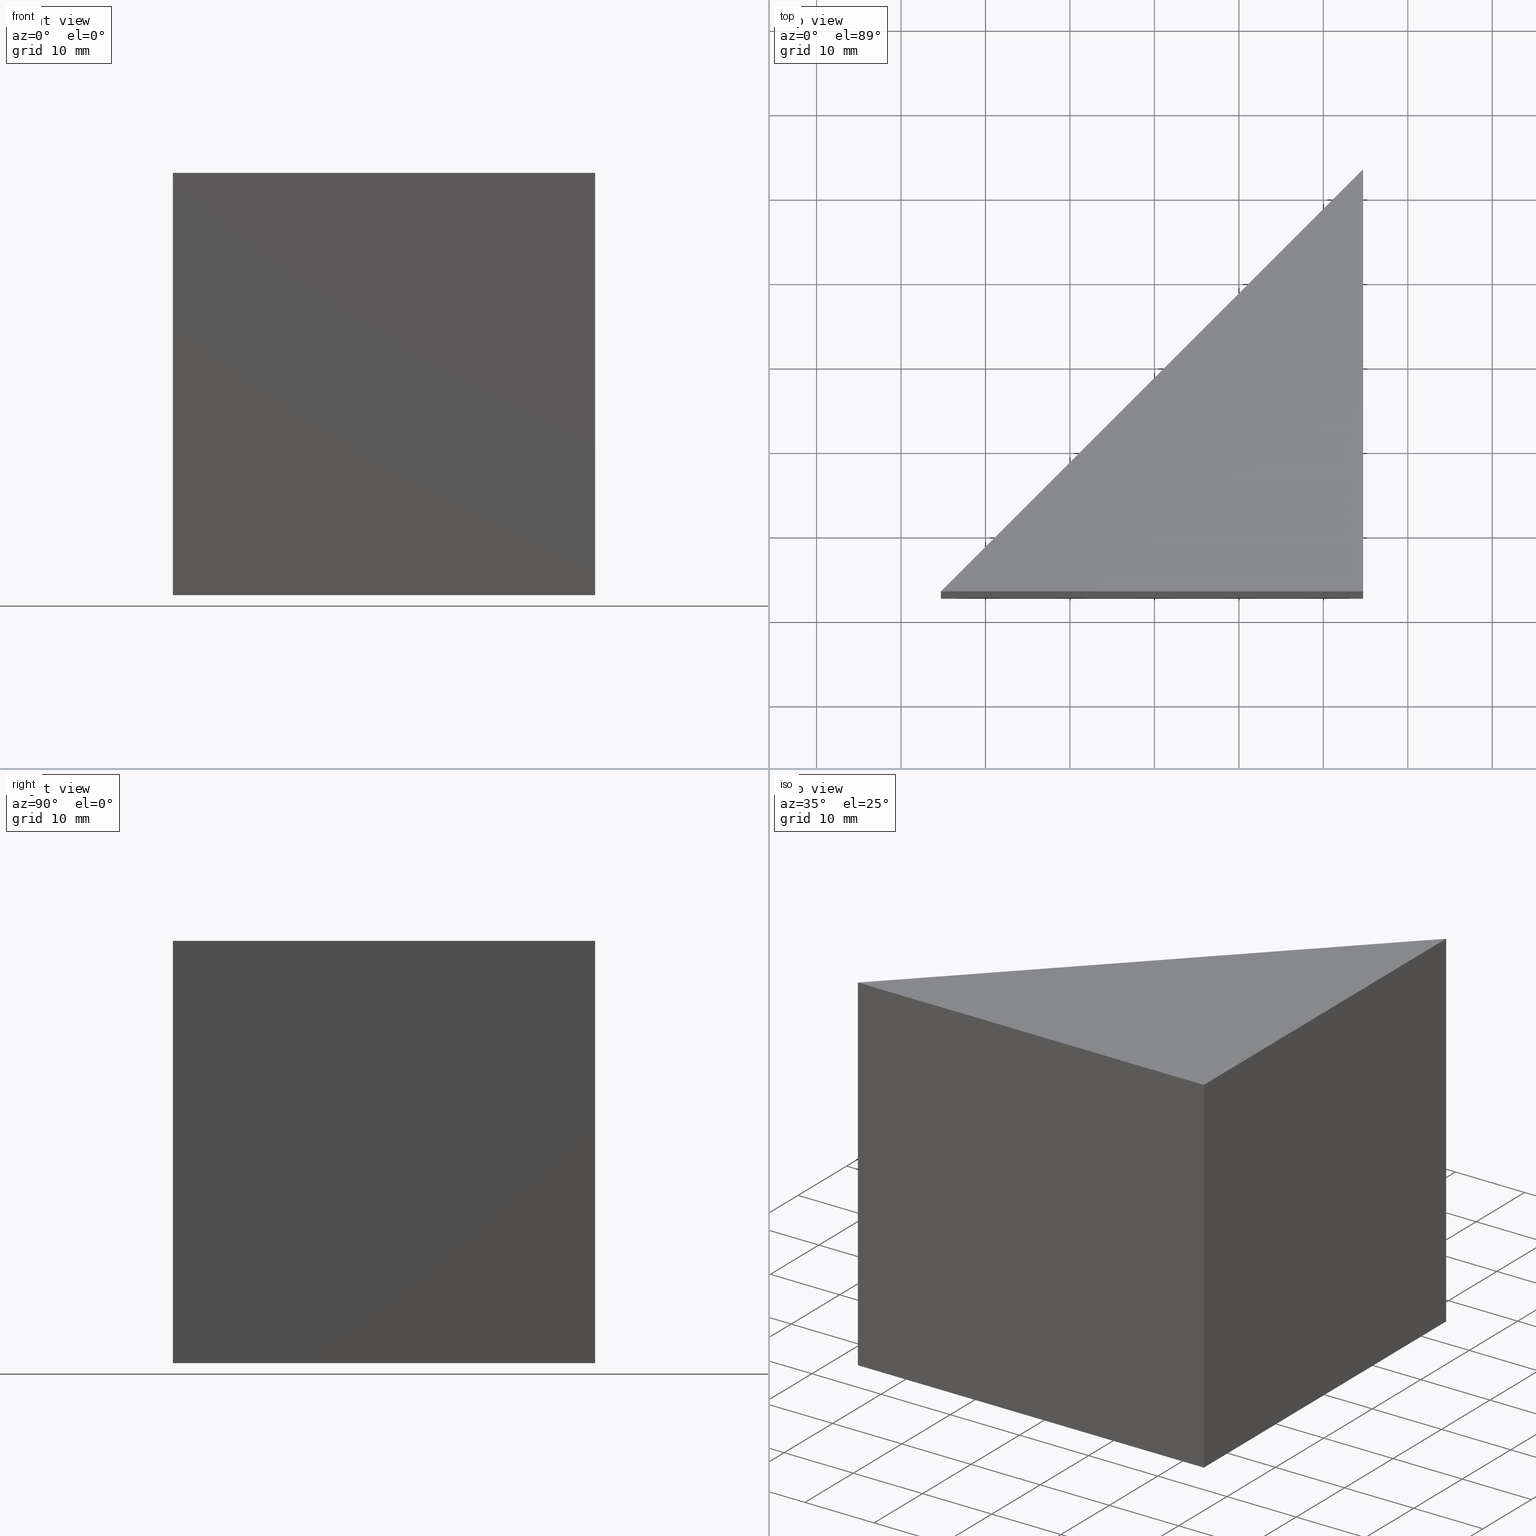
[diagram: canonical four-view strip — front | top / right | iso, engineering-drawing reading convention]
A machine part, canonical four-view strip (front | top / right | iso — engineering-drawing reading convention). The complete STEP part file that produces these views, byte-faithful:
ISO-10303-21;
HEADER;
FILE_DESCRIPTION (( 'STEP AP203' ),
    '1' );
FILE_NAME ('355511.STEP',
    '2019-07-22T06:13:19',
    ( '' ),
    ( '' ),
    'SwSTEP 2.0',
    'SolidWorks 2016',
    '' );
FILE_SCHEMA (( 'CONFIG_CONTROL_DESIGN' ));
ENDSEC;

DATA;
#1 = CALENDAR_DATE ( 2019, 22, 7 ) ;
#2 = APPROVAL ( #37, 'δָ��' ) ;
#3 = AXIS2_PLACEMENT_3D ( 'NONE', #7, #31, #127 ) ;
#4 = VERTEX_POINT ( 'NONE', #194 ) ;
#5 = PRODUCT_DEFINITION_FORMATION_WITH_SPECIFIED_SOURCE ( '�κ�', '', #128, .NOT_KNOWN. ) ;
#6 = PERSON_AND_ORGANIZATION ( #80, #125 ) ;
#7 = CARTESIAN_POINT ( 'NONE',  ( 0.0000000000000000000, 0.0000000000000000000, 0.0000000000000000000 ) ) ;
#8 = DIRECTION ( 'NONE',  ( 0.0000000000000000000, -1.000000000000000000, 0.0000000000000000000 ) ) ;
#9 = PLANE ( 'NONE',  #264 ) ;
#10 = PERSON_AND_ORGANIZATION ( #80, #125 ) ;
#11 = VERTEX_POINT ( 'NONE', #81 ) ;
#12 = CC_DESIGN_DATE_AND_TIME_ASSIGNMENT ( #63, #187, ( #29 ) ) ;
#13 = DIRECTION ( 'NONE',  ( -1.000000000000000000, 0.0000000000000000000, 0.0000000000000000000 ) ) ;
#14 = CC_DESIGN_PERSON_AND_ORGANIZATION_ASSIGNMENT ( #54, #64, ( #128 ) ) ;
#15 =( LENGTH_UNIT ( ) NAMED_UNIT ( * ) SI_UNIT ( .MILLI., .METRE. ) );
#16 = ORIENTED_EDGE ( 'NONE', *, *, #278, .F. ) ;
#17 = DATE_TIME_ROLE ( 'classification_date' ) ;
#18 = MANIFOLD_SOLID_BREP ( '͹̨-����1', #231 ) ;
#19 = PERSON_AND_ORGANIZATION_ROLE ( 'design_owner' ) ;
#20 = CARTESIAN_POINT ( 'NONE',  ( 0.0000000000000000000, 0.0000000000000000000, 0.0000000000000000000 ) ) ;
#21 = COORDINATED_UNIVERSAL_TIME_OFFSET ( 8, 0, .AHEAD. ) ;
#22 = VERTEX_POINT ( 'NONE', #79 ) ;
#23 =( GEOMETRIC_REPRESENTATION_CONTEXT ( 3 ) GLOBAL_UNCERTAINTY_ASSIGNED_CONTEXT ( ( #49 ) ) GLOBAL_UNIT_ASSIGNED_CONTEXT ( ( #15, #279, #40 ) ) REPRESENTATION_CONTEXT ( 'NONE', 'WORKASPACE' ) );
#24 = APPROVAL ( #258, 'δָ��' ) ;
#25 = APPROVAL_PERSON_ORGANIZATION ( #32, #45, #162 ) ;
#26 = FACE_OUTER_BOUND ( 'NONE', #104, .T. ) ;
#27 = DATE_AND_TIME ( #121, #266 ) ;
#28 = LINE ( 'NONE', #181, #122 ) ;
#29 = SECURITY_CLASSIFICATION ( '', '', #91 ) ;
#30 = LINE ( 'NONE', #247, #272 ) ;
#31 = DIRECTION ( 'NONE',  ( 0.0000000000000000000, 0.0000000000000000000, -1.000000000000000000 ) ) ;
#32 = PERSON_AND_ORGANIZATION ( #80, #125 ) ;
#33 = CARTESIAN_POINT ( 'NONE',  ( 174.7140637109057500, 182.7790702403060500, 50.00000000000000000 ) ) ;
#34 = CALENDAR_DATE ( 2019, 22, 7 ) ;
#35 = EDGE_LOOP ( 'NONE', ( #268, #163, #282, #176 ) ) ;
#36 = AXIS2_PLACEMENT_3D ( 'NONE', #20, #177, #252 ) ;
#37 = APPROVAL_STATUS ( 'not_yet_approved' ) ;
#38 = PLANE ( 'NONE',  #74 ) ;
#39 = DIRECTION ( 'NONE',  ( -1.000000000000000000, 0.0000000000000000000, -0.0000000000000000000 ) ) ;
#40 =( NAMED_UNIT ( * ) SI_UNIT ( $, .STERADIAN. ) SOLID_ANGLE_UNIT ( ) );
#41 = CALENDAR_DATE ( 2019, 22, 7 ) ;
#42 = VERTEX_POINT ( 'NONE', #132 ) ;
#43 = AXIS2_PLACEMENT_3D ( 'NONE', #274, #239, #133 ) ;
#44 = DATE_TIME_ROLE ( 'creation_date' ) ;
#45 = APPROVAL ( #188, 'δָ��' ) ;
#46 = APPROVAL_DATE_TIME ( #255, #141 ) ;
#47 = APPROVAL_ROLE ( '' ) ;
#48 = PRODUCT_DEFINITION_SHAPE ( 'NONE', 'NONE',  #123 ) ;
#49 = UNCERTAINTY_MEASURE_WITH_UNIT (LENGTH_MEASURE( 1.000000000000000100E-005 ), #15, 'distance_accuracy_value', 'NONE');
#50 = COORDINATED_UNIVERSAL_TIME_OFFSET ( 8, 0, .AHEAD. ) ;
#51 = CC_DESIGN_PERSON_AND_ORGANIZATION_ASSIGNMENT ( #10, #112, ( #150 ) ) ;
#52 = LOCAL_TIME ( 14, 13, 19.00000000000000000, #214 ) ;
#53 = VERTEX_POINT ( 'NONE', #106 ) ;
#54 = PERSON_AND_ORGANIZATION ( #80, #125 ) ;
#55 = CARTESIAN_POINT ( 'NONE',  ( 124.7140637109057500, 132.7790702403060500, 50.00000000000000000 ) ) ;
#56 = DIRECTION ( 'NONE',  ( 0.0000000000000000000, 1.000000000000000000, 0.0000000000000000000 ) ) ;
#57 = DIRECTION ( 'NONE',  ( -0.0000000000000000000, -0.0000000000000000000, -1.000000000000000000 ) ) ;
#58 = CALENDAR_DATE ( 2019, 22, 7 ) ;
#59 = APPROVAL ( #205, 'δָ��' ) ;
#60 = APPLICATION_PROTOCOL_DEFINITION ( 'international standard', 'config_control_design', 1994, #137 ) ;
#61 = CC_DESIGN_APPROVAL ( #141, ( #150 ) ) ;
#62 = APPROVAL_STATUS ( 'not_yet_approved' ) ;
#63 = DATE_AND_TIME ( #145, #93 ) ;
#64 = PERSON_AND_ORGANIZATION_ROLE ( 'design_owner' ) ;
#65 = APPROVAL_PERSON_ORGANIZATION ( #189, #2, #153 ) ;
#66 = APPROVAL_STATUS ( 'not_yet_approved' ) ;
#67 = PLANE ( 'NONE',  #43 ) ;
#68 = ORIENTED_EDGE ( 'NONE', *, *, #88, .F. ) ;
#69 = SECURITY_CLASSIFICATION ( '', '', #157 ) ;
#70 = PERSON_AND_ORGANIZATION_ROLE ( 'design_supplier' ) ;
#71 = PERSON_AND_ORGANIZATION_ROLE ( 'creator' ) ;
#72 = DATE_AND_TIME ( #95, #210 ) ;
#73 = LOCAL_TIME ( 14, 13, 19.00000000000000000, #185 ) ;
#74 = AXIS2_PLACEMENT_3D ( 'NONE', #136, #233, #199 ) ;
#75 = VECTOR ( 'NONE', #56, 1000.000000000000000 ) ;
#76 = CC_DESIGN_APPROVAL ( #59, ( #182 ) ) ;
#77 = CC_DESIGN_PERSON_AND_ORGANIZATION_ASSIGNMENT ( #243, #275, ( #150 ) ) ;
#78 = ORIENTED_EDGE ( 'NONE', *, *, #229, .F. ) ;
#79 = CARTESIAN_POINT ( 'NONE',  ( 124.7140637109057500, 132.7790702403060500, 50.00000000000000000 ) ) ;
#80 = PERSON ( 'δָ��', 'δָ��', 'δָ��', ('δָ��'), ('δָ��'), ('δָ��') ) ;
#81 = CARTESIAN_POINT ( 'NONE',  ( 174.7140637109057500, 132.7790702403060500, 0.0000000000000000000 ) ) ;
#82 = COORDINATED_UNIVERSAL_TIME_OFFSET ( 8, 0, .AHEAD. ) ;
#83 = LINE ( 'NONE', #221, #256 ) ;
#84 = APPLICATION_PROTOCOL_DEFINITION ( 'international standard', 'config_control_design', 1994, #110 ) ;
#85 = APPLICATION_CONTEXT ( 'configuration controlled 3d designs of mechanical parts and assemblies' ) ;
#86 = CC_DESIGN_SECURITY_CLASSIFICATION ( #69, ( #150 ) ) ;
#87 = DIRECTION ( 'NONE',  ( -1.000000000000000000, 0.0000000000000000000, 0.0000000000000000000 ) ) ;
#88 = EDGE_CURVE ( 'NONE', #22, #42, #140, .T. ) ;
#89 = LOCAL_TIME ( 14, 13, 19.00000000000000000, #262 ) ;
#90 = VECTOR ( 'NONE', #246, 1000.000000000000000 ) ;
#91 = SECURITY_CLASSIFICATION_LEVEL ( 'unclassified' ) ;
#92 = CC_DESIGN_PERSON_AND_ORGANIZATION_ASSIGNMENT ( #241, #71, ( #5 ) ) ;
#93 = LOCAL_TIME ( 14, 13, 19.00000000000000000, #82 ) ;
#94 = EDGE_LOOP ( 'NONE', ( #78, #16, #161, #207 ) ) ;
#95 = CALENDAR_DATE ( 2019, 22, 7 ) ;
#96 = PERSON_AND_ORGANIZATION ( #80, #125 ) ;
#97 = LINE ( 'NONE', #271, #149 ) ;
#98 = CC_DESIGN_DATE_AND_TIME_ASSIGNMENT ( #165, #44, ( #182 ) ) ;
#99 = CC_DESIGN_PERSON_AND_ORGANIZATION_ASSIGNMENT ( #96, #19, ( #236 ) ) ;
#100 = ORIENTED_EDGE ( 'NONE', *, *, #167, .T. ) ;
#101 = DIRECTION ( 'NONE',  ( 0.7071067811865474600, 0.7071067811865475700, 0.0000000000000000000 ) ) ;
#102 = CC_DESIGN_SECURITY_CLASSIFICATION ( #29, ( #5 ) ) ;
#103 = CARTESIAN_POINT ( 'NONE',  ( 124.7140637109057500, 132.7790702403060500, 0.0000000000000000000 ) ) ;
#104 = EDGE_LOOP ( 'NONE', ( #118, #100, #215 ) ) ;
#105 = EDGE_CURVE ( 'NONE', #11, #200, #97, .T. ) ;
#106 = CARTESIAN_POINT ( 'NONE',  ( 174.7140637109057500, 132.7790702403060500, 50.00000000000000000 ) ) ;
#107 = CC_DESIGN_PERSON_AND_ORGANIZATION_ASSIGNMENT ( #192, #209, ( #29 ) ) ;
#108 = DIRECTION ( 'NONE',  ( -0.0000000000000000000, -0.0000000000000000000, -1.000000000000000000 ) ) ;
#109 = FACE_OUTER_BOUND ( 'NONE', #260, .T. ) ;
#110 = APPLICATION_CONTEXT ( 'configuration controlled 3d designs of mechanical parts and assemblies' ) ;
#111 = CC_DESIGN_PERSON_AND_ORGANIZATION_ASSIGNMENT ( #6, #116, ( #69 ) ) ;
#112 = PERSON_AND_ORGANIZATION_ROLE ( 'creator' ) ;
#113 = APPROVAL_ROLE ( '' ) ;
#114 = APPROVAL_DATE_TIME ( #72, #45 ) ;
#115 = APPROVAL_PERSON_ORGANIZATION ( #173, #59, #113 ) ;
#116 = PERSON_AND_ORGANIZATION_ROLE ( 'classification_officer' ) ;
#117 = DATE_AND_TIME ( #235, #73 ) ;
#118 = ORIENTED_EDGE ( 'NONE', *, *, #229, .T. ) ;
#119 = LOCAL_TIME ( 14, 13, 19.00000000000000000, #224 ) ;
#120 = APPROVAL ( #62, 'δָ��' ) ;
#121 = CALENDAR_DATE ( 2019, 22, 7 ) ;
#122 = VECTOR ( 'NONE', #108, 1000.000000000000000 ) ;
#123 = PRODUCT_DEFINITION ( 'δ֪', '', #150, #178 ) ;
#124 = PRODUCT_DEFINITION_SHAPE ( 'NONE', 'NONE',  #182 ) ;
#125 = ORGANIZATION ( 'δָ��', 'δָ��', '' ) ;
#126 = CARTESIAN_POINT ( 'NONE',  ( 174.7140637109057500, 132.7790702403060500, 50.00000000000000000 ) ) ;
#127 = DIRECTION ( 'NONE',  ( -1.000000000000000000, 0.0000000000000000000, -0.0000000000000000000 ) ) ;
#128 = PRODUCT ( '355511', '355511', '', ( #202 ) ) ;
#129 = DIRECTION ( 'NONE',  ( 0.0000000000000000000, -0.0000000000000000000, -1.000000000000000000 ) ) ;
#130 = APPROVAL_PERSON_ORGANIZATION ( #277, #141, #232 ) ;
#131 = ORIENTED_EDGE ( 'NONE', *, *, #191, .T. ) ;
#132 = CARTESIAN_POINT ( 'NONE',  ( 174.7140637109057500, 182.7790702403060500, 50.00000000000000000 ) ) ;
#133 = DIRECTION ( 'NONE',  ( -0.7071067811865474600, -0.7071067811865476800, 0.0000000000000000000 ) ) ;
#134 = COORDINATED_UNIVERSAL_TIME_OFFSET ( 8, 0, .AHEAD. ) ;
#135 = DATE_AND_TIME ( #168, #52 ) ;
#136 = CARTESIAN_POINT ( 'NONE',  ( 174.7140637109057500, 132.7790702403060500, 50.00000000000000000 ) ) ;
#137 = APPLICATION_CONTEXT ( 'configuration controlled 3d designs of mechanical parts and assemblies' ) ;
#138 = CC_DESIGN_PERSON_AND_ORGANIZATION_ASSIGNMENT ( #175, #217, ( #123 ) ) ;
#139 = COORDINATED_UNIVERSAL_TIME_OFFSET ( 8, 0, .AHEAD. ) ;
#140 = LINE ( 'NONE', #55, #263 ) ;
#141 = APPROVAL ( #66, 'δָ��' ) ;
#142 = LINE ( 'NONE', #33, #249 ) ;
#143 = LOCAL_TIME ( 14, 13, 19.00000000000000000, #139 ) ;
#144 = FACE_OUTER_BOUND ( 'NONE', #146, .T. ) ;
#145 = CALENDAR_DATE ( 2019, 22, 7 ) ;
#146 = EDGE_LOOP ( 'NONE', ( #154, #166, #220, #212 ) ) ;
#147 = ADVANCED_FACE ( 'NONE', ( #186 ), #250, .T. ) ;
#148 = DATE_AND_TIME ( #195, #230 ) ;
#149 = VECTOR ( 'NONE', #267, 1000.000000000000000 ) ;
#150 = PRODUCT_DEFINITION_FORMATION_WITH_SPECIFIED_SOURCE ( '�κ�', '', #236, .NOT_KNOWN. ) ;
#151 = CARTESIAN_POINT ( 'NONE',  ( 174.7140637109057500, 182.7790702403060500, 0.0000000000000000000 ) ) ;
#152 = DIRECTION ( 'NONE',  ( -0.0000000000000000000, -0.0000000000000000000, -1.000000000000000000 ) ) ;
#153 = APPROVAL_ROLE ( '' ) ;
#154 = ORIENTED_EDGE ( 'NONE', *, *, #167, .F. ) ;
#155 = MECHANICAL_CONTEXT ( 'NONE', #110, 'mechanical' ) ;
#156 = EDGE_CURVE ( 'NONE', #22, #4, #30, .T. ) ;
#157 = SECURITY_CLASSIFICATION_LEVEL ( 'unclassified' ) ;
#158 = DIRECTION ( 'NONE',  ( 1.000000000000000000, 0.0000000000000000000, 0.0000000000000000000 ) ) ;
#159 = APPLICATION_PROTOCOL_DEFINITION ( 'international standard', 'config_control_design', 1994, #237 ) ;
#160 = PERSON_AND_ORGANIZATION ( #80, #125 ) ;
#161 = ORIENTED_EDGE ( 'NONE', *, *, #184, .T. ) ;
#162 = APPROVAL_ROLE ( '' ) ;
#163 = ORIENTED_EDGE ( 'NONE', *, *, #203, .F. ) ;
#164 = ADVANCED_BREP_SHAPE_REPRESENTATION ( '355511', ( #18, #170 ), #23 ) ;
#165 = DATE_AND_TIME ( #41, #143 ) ;
#166 = ORIENTED_EDGE ( 'NONE', *, *, #156, .F. ) ;
#167 = EDGE_CURVE ( 'NONE', #4, #200, #211, .T. ) ;
#168 = CALENDAR_DATE ( 2019, 22, 7 ) ;
#169 = LINE ( 'NONE', #126, #75 ) ;
#170 = AXIS2_PLACEMENT_3D ( 'NONE', #218, #276, #158 ) ;
#171 = ADVANCED_FACE ( 'NONE', ( #26 ), #248, .T. ) ;
#172 = APPROVAL_DATE_TIME ( #222, #24 ) ;
#173 = PERSON_AND_ORGANIZATION ( #80, #125 ) ;
#174 = CARTESIAN_POINT ( 'NONE',  ( 174.7140637109057500, 132.7790702403060500, 50.00000000000000000 ) ) ;
#175 = PERSON_AND_ORGANIZATION ( #80, #125 ) ;
#176 = ORIENTED_EDGE ( 'NONE', *, *, #278, .T. ) ;
#177 = DIRECTION ( 'NONE',  ( 0.0000000000000000000, 0.0000000000000000000, 1.000000000000000000 ) ) ;
#178 = DESIGN_CONTEXT ( 'detailed design', #137, 'design' ) ;
#179 = APPLICATION_PROTOCOL_DEFINITION ( 'international standard', 'config_control_design', 1994, #85 ) ;
#180 = APPROVAL_DATE_TIME ( #227, #2 ) ;
#181 = CARTESIAN_POINT ( 'NONE',  ( 174.7140637109057500, 132.7790702403060500, 50.00000000000000000 ) ) ;
#182 = PRODUCT_DEFINITION ( 'δ֪', '', #5, #261 ) ;
#183 = DATE_TIME_ROLE ( 'creation_date' ) ;
#184 = EDGE_CURVE ( 'NONE', #53, #22, #244, .T. ) ;
#185 = COORDINATED_UNIVERSAL_TIME_OFFSET ( 8, 0, .AHEAD. ) ;
#186 = FACE_OUTER_BOUND ( 'NONE', #94, .T. ) ;
#187 = DATE_TIME_ROLE ( 'classification_date' ) ;
#188 = APPROVAL_STATUS ( 'not_yet_approved' ) ;
#189 = PERSON_AND_ORGANIZATION ( #80, #125 ) ;
#190 = LOCAL_TIME ( 14, 13, 19.00000000000000000, #21 ) ;
#191 = EDGE_CURVE ( 'NONE', #53, #42, #169, .T. ) ;
#192 = PERSON_AND_ORGANIZATION ( #80, #125 ) ;
#193 = APPROVAL_PERSON_ORGANIZATION ( #242, #120, #204 ) ;
#194 = CARTESIAN_POINT ( 'NONE',  ( 124.7140637109057500, 132.7790702403060500, 0.0000000000000000000 ) ) ;
#195 = CALENDAR_DATE ( 2019, 22, 7 ) ;
#196 = FACE_OUTER_BOUND ( 'NONE', #35, .T. ) ;
#197 = CARTESIAN_POINT ( 'NONE',  ( 174.7140637109057500, 132.7790702403060500, 50.00000000000000000 ) ) ;
#198 = DIRECTION ( 'NONE',  ( 0.0000000000000000000, 0.0000000000000000000, -1.000000000000000000 ) ) ;
#199 = DIRECTION ( 'NONE',  ( 0.0000000000000000000, 0.0000000000000000000, 1.000000000000000000 ) ) ;
#200 = VERTEX_POINT ( 'NONE', #151 ) ;
#201 = CC_DESIGN_APPROVAL ( #120, ( #123 ) ) ;
#202 = MECHANICAL_CONTEXT ( 'NONE', #85, 'mechanical' ) ;
#203 = EDGE_CURVE ( 'NONE', #42, #200, #142, .T. ) ;
#204 = APPROVAL_ROLE ( '' ) ;
#205 = APPROVAL_STATUS ( 'not_yet_approved' ) ;
#206 = SHAPE_DEFINITION_REPRESENTATION ( #124, #164 ) ;
#207 = ORIENTED_EDGE ( 'NONE', *, *, #156, .T. ) ;
#208 = PRODUCT_RELATED_PRODUCT_CATEGORY ( 'detail', '', ( #236 ) ) ;
#209 = PERSON_AND_ORGANIZATION_ROLE ( 'classification_officer' ) ;
#210 = LOCAL_TIME ( 14, 13, 19.00000000000000000, #134 ) ;
#211 = LINE ( 'NONE', #103, #90 ) ;
#212 = ORIENTED_EDGE ( 'NONE', *, *, #203, .T. ) ;
#213 = CC_DESIGN_DATE_AND_TIME_ASSIGNMENT ( #117, #17, ( #69 ) ) ;
#214 = COORDINATED_UNIVERSAL_TIME_OFFSET ( 8, 0, .AHEAD. ) ;
#215 = ORIENTED_EDGE ( 'NONE', *, *, #105, .F. ) ;
#216 = CC_DESIGN_APPROVAL ( #24, ( #5 ) ) ;
#217 = PERSON_AND_ORGANIZATION_ROLE ( 'creator' ) ;
#218 = CARTESIAN_POINT ( 'NONE',  ( 0.0000000000000000000, 0.0000000000000000000, 0.0000000000000000000 ) ) ;
#219 = APPROVAL_DATE_TIME ( #27, #59 ) ;
#220 = ORIENTED_EDGE ( 'NONE', *, *, #88, .T. ) ;
#221 = CARTESIAN_POINT ( 'NONE',  ( 174.7140637109057500, 132.7790702403060500, 0.0000000000000000000 ) ) ;
#222 = DATE_AND_TIME ( #58, #190 ) ;
#223 = VECTOR ( 'NONE', #13, 1000.000000000000000 ) ;
#224 = COORDINATED_UNIVERSAL_TIME_OFFSET ( 8, 0, .AHEAD. ) ;
#225 = CC_DESIGN_APPROVAL ( #45, ( #29 ) ) ;
#226 = APPROVAL_DATE_TIME ( #148, #120 ) ;
#227 = DATE_AND_TIME ( #1, #119 ) ;
#228 = ADVANCED_FACE ( 'NONE', ( #109 ), #9, .F. ) ;
#229 = EDGE_CURVE ( 'NONE', #11, #4, #83, .T. ) ;
#230 = LOCAL_TIME ( 14, 13, 19.00000000000000000, #281 ) ;
#231 = CLOSED_SHELL ( 'NONE', ( #147, #269, #265, #228, #171 ) ) ;
#232 = APPROVAL_ROLE ( '' ) ;
#233 = DIRECTION ( 'NONE',  ( -1.000000000000000000, 0.0000000000000000000, 0.0000000000000000000 ) ) ;
#234 = CC_DESIGN_PERSON_AND_ORGANIZATION_ASSIGNMENT ( #251, #70, ( #5 ) ) ;
#235 = CALENDAR_DATE ( 2019, 22, 7 ) ;
#236 = PRODUCT ( '355511', '355511', '', ( #155 ) ) ;
#237 = APPLICATION_CONTEXT ( 'configuration controlled 3d designs of mechanical parts and assemblies' ) ;
#238 = AXIS2_PLACEMENT_3D ( 'NONE', #197, #8, #129 ) ;
#239 = DIRECTION ( 'NONE',  ( -0.7071067811865476800, 0.7071067811865474600, 0.0000000000000000000 ) ) ;
#240 = APPROVAL_PERSON_ORGANIZATION ( #160, #24, #47 ) ;
#241 = PERSON_AND_ORGANIZATION ( #80, #125 ) ;
#242 = PERSON_AND_ORGANIZATION ( #80, #125 ) ;
#243 = PERSON_AND_ORGANIZATION ( #80, #125 ) ;
#244 = LINE ( 'NONE', #174, #223 ) ;
#245 = PRODUCT_RELATED_PRODUCT_CATEGORY ( 'detail', '', ( #128 ) ) ;
#246 = DIRECTION ( 'NONE',  ( 0.7071067811865474600, 0.7071067811865475700, 0.0000000000000000000 ) ) ;
#247 = CARTESIAN_POINT ( 'NONE',  ( 124.7140637109057500, 132.7790702403060500, 50.00000000000000000 ) ) ;
#248 = PLANE ( 'NONE',  #3 ) ;
#249 = VECTOR ( 'NONE', #57, 1000.000000000000000 ) ;
#250 = PLANE ( 'NONE',  #238 ) ;
#251 = PERSON_AND_ORGANIZATION ( #80, #125 ) ;
#252 = DIRECTION ( 'NONE',  ( 1.000000000000000000, 0.0000000000000000000, 0.0000000000000000000 ) ) ;
#253 = PERSON_AND_ORGANIZATION_ROLE ( 'creator' ) ;
#254 = CARTESIAN_POINT ( 'NONE',  ( 0.0000000000000000000, 0.0000000000000000000, 50.00000000000000000 ) ) ;
#255 = DATE_AND_TIME ( #34, #89 ) ;
#256 = VECTOR ( 'NONE', #87, 1000.000000000000000 ) ;
#257 = ORIENTED_EDGE ( 'NONE', *, *, #184, .F. ) ;
#258 = APPROVAL_STATUS ( 'not_yet_approved' ) ;
#259 = PERSON_AND_ORGANIZATION ( #80, #125 ) ;
#260 = EDGE_LOOP ( 'NONE', ( #257, #131, #68 ) ) ;
#261 = DESIGN_CONTEXT ( 'detailed design', #237, 'design' ) ;
#262 = COORDINATED_UNIVERSAL_TIME_OFFSET ( 8, 0, .AHEAD. ) ;
#263 = VECTOR ( 'NONE', #101, 1000.000000000000000 ) ;
#264 = AXIS2_PLACEMENT_3D ( 'NONE', #254, #198, #39 ) ;
#265 = ADVANCED_FACE ( 'NONE', ( #144 ), #67, .T. ) ;
#266 = LOCAL_TIME ( 14, 13, 19.00000000000000000, #50 ) ;
#267 = DIRECTION ( 'NONE',  ( 0.0000000000000000000, 1.000000000000000000, 0.0000000000000000000 ) ) ;
#268 = ORIENTED_EDGE ( 'NONE', *, *, #105, .T. ) ;
#269 = ADVANCED_FACE ( 'NONE', ( #196 ), #38, .F. ) ;
#270 = CC_DESIGN_DATE_AND_TIME_ASSIGNMENT ( #135, #183, ( #123 ) ) ;
#271 = CARTESIAN_POINT ( 'NONE',  ( 174.7140637109057500, 132.7790702403060500, 0.0000000000000000000 ) ) ;
#272 = VECTOR ( 'NONE', #152, 1000.000000000000000 ) ;
#273 = CC_DESIGN_APPROVAL ( #2, ( #69 ) ) ;
#274 = CARTESIAN_POINT ( 'NONE',  ( 124.7140637109057500, 132.7790702403060500, 50.00000000000000000 ) ) ;
#275 = PERSON_AND_ORGANIZATION_ROLE ( 'design_supplier' ) ;
#276 = DIRECTION ( 'NONE',  ( 0.0000000000000000000, 0.0000000000000000000, 1.000000000000000000 ) ) ;
#277 = PERSON_AND_ORGANIZATION ( #80, #125 ) ;
#278 = EDGE_CURVE ( 'NONE', #53, #11, #28, .T. ) ;
#279 =( NAMED_UNIT ( * ) PLANE_ANGLE_UNIT ( ) SI_UNIT ( $, .RADIAN. ) );
#280 = CC_DESIGN_PERSON_AND_ORGANIZATION_ASSIGNMENT ( #259, #253, ( #182 ) ) ;
#281 = COORDINATED_UNIVERSAL_TIME_OFFSET ( 8, 0, .AHEAD. ) ;
#282 = ORIENTED_EDGE ( 'NONE', *, *, #191, .F. ) ;
ENDSEC;
END-ISO-10303-21;
